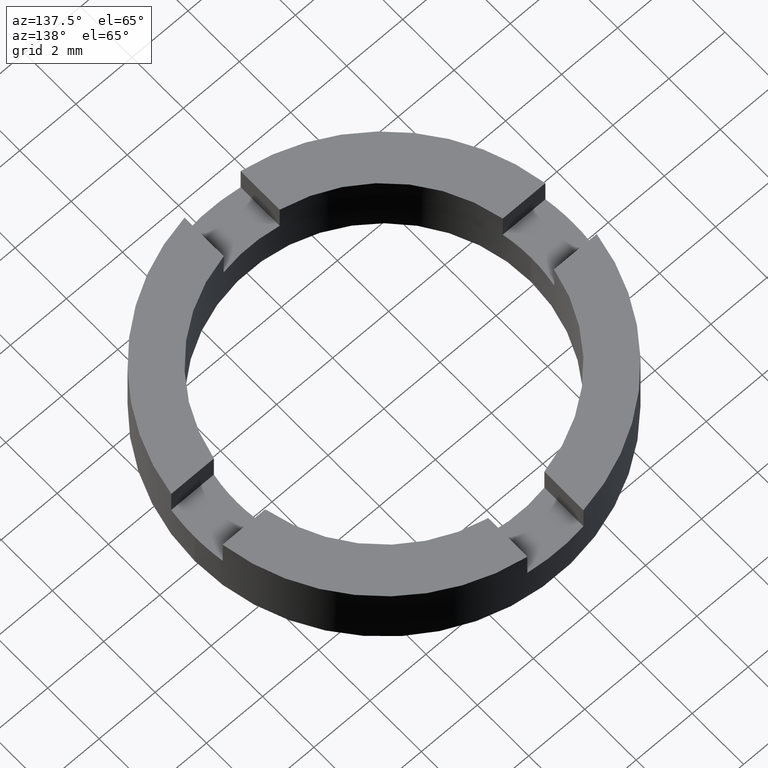
[diagram: clean part render]
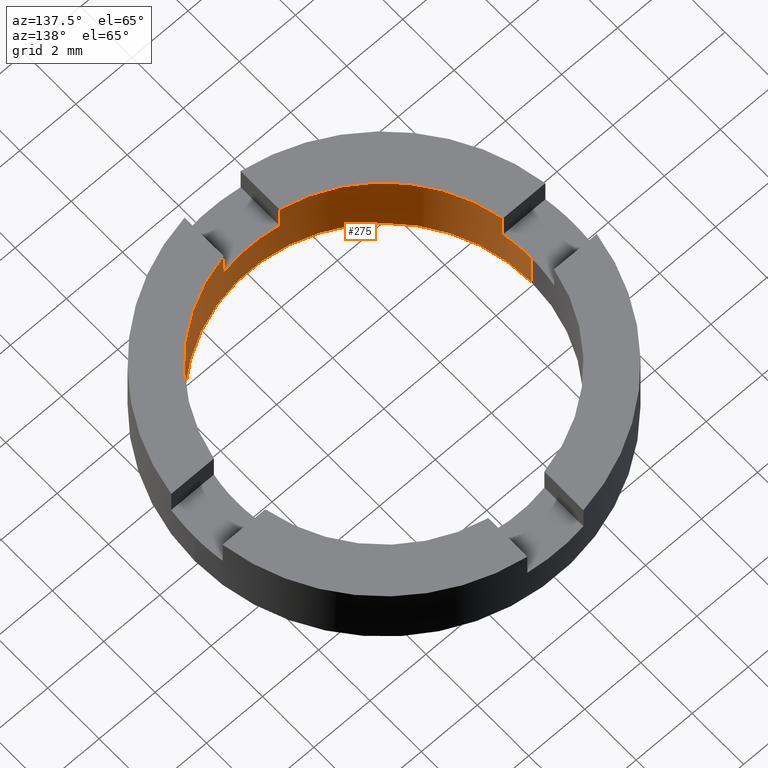
[diagram: same view with one face highlighted and labeled with its STEP entity id]
A machine part, auxiliary view. The second image highlights one B-rep face of the part: STEP entity #275.
In plain terms, the highlighted cylindrical surface (partial cylindrical patch) has radius 5.25 mm, axis along (-0, -0, -1).
Its self-contained STEP definition (entity closure, byte-faithful):
#5 = DIRECTION ( 'NONE',  ( -0.000000000000000000, -0.000000000000000000, 1.000000000000000000 ) ) ;
#29 = EDGE_CURVE ( 'NONE', #228, #414, #557, .T. ) ;
#37 = CARTESIAN_POINT ( 'NONE',  ( -5.250000000000000000, 0.000000000000000000, 0.000000000000000000 ) ) ;
#47 = CARTESIAN_POINT ( 'NONE',  ( 0.000000000000000000, 0.000000000000000000, 1.500000000000000000 ) ) ;
#57 = LINE ( 'NONE', #92, #328 ) ;
#60 = FACE_OUTER_BOUND ( 'NONE', #146, .T. ) ;
#66 = EDGE_CURVE ( 'NONE', #450, #174, #588, .T. ) ;
#71 = VECTOR ( 'NONE', #141, 1000.000000000000000 ) ;
#73 = CYLINDRICAL_SURFACE ( 'NONE', #420, 5.250000000000000000 ) ;
#83 = EDGE_CURVE ( 'NONE', #589, #209, #563, .T. ) ;
#89 = CARTESIAN_POINT ( 'NONE',  ( -0.9999999999999986677, -5.153882032022075954, 1.500000000000000000 ) ) ;
#91 = CIRCLE ( 'NONE', #692, 5.250000000000000000 ) ;
#92 = CARTESIAN_POINT ( 'NONE',  ( 5.250000000000000000, 6.429395695523604153E-16, 2.500000000000000000 ) ) ;
#93 = LINE ( 'NONE', #280, #635 ) ;
#105 = LINE ( 'NONE', #409, #114 ) ;
#106 = CARTESIAN_POINT ( 'NONE',  ( 0.000000000000000000, 0.000000000000000000, 1.500000000000000000 ) ) ;
#113 = VECTOR ( 'NONE', #5, 1000.000000000000000 ) ;
#114 = VECTOR ( 'NONE', #573, 1000.000000000000000 ) ;
#126 = ORIENTED_EDGE ( 'NONE', *, *, #684, .F. ) ;
#127 = EDGE_CURVE ( 'NONE', #320, #209, #565, .T. ) ;
#130 = CIRCLE ( 'NONE', #527, 5.250000000000000000 ) ;
#137 = CARTESIAN_POINT ( 'NONE',  ( 0.000000000000000000, 0.000000000000000000, 2.500000000000000000 ) ) ;
#139 = DIRECTION ( 'NONE',  ( 0.000000000000000000, 0.000000000000000000, 1.000000000000000000 ) ) ;
#141 = DIRECTION ( 'NONE',  ( -0.000000000000000000, -0.000000000000000000, 1.000000000000000000 ) ) ;
#146 = EDGE_LOOP ( 'NONE', ( #642, #472, #186, #632, #458, #389, #400, #441, #126, #648, #651, #712 ) ) ;
#158 = DIRECTION ( 'NONE',  ( 1.000000000000000000, 0.000000000000000000, 0.000000000000000000 ) ) ;
#174 = VERTEX_POINT ( 'NONE', #696 ) ;
#186 = ORIENTED_EDGE ( 'NONE', *, *, #66, .F. ) ;
#187 = VERTEX_POINT ( 'NONE', #549 ) ;
#201 = VERTEX_POINT ( 'NONE', #697 ) ;
#208 = AXIS2_PLACEMENT_3D ( 'NONE', #622, #434, #305 ) ;
#209 = VERTEX_POINT ( 'NONE', #681 ) ;
#225 = DIRECTION ( 'NONE',  ( -1.000000000000000000, 0.000000000000000000, 0.000000000000000000 ) ) ;
#228 = VERTEX_POINT ( 'NONE', #89 ) ;
#244 = CARTESIAN_POINT ( 'NONE',  ( -0.9999999999999986677, -5.153882032022075954, 2.500000000000000000 ) ) ;
#266 = AXIS2_PLACEMENT_3D ( 'NONE', #307, #497, #749 ) ;
#275 = ADVANCED_FACE ( 'NONE', ( #60 ), #73, .F. ) ;
#280 = CARTESIAN_POINT ( 'NONE',  ( -5.250000000000000000, 0.000000000000000000, 2.500000000000000000 ) ) ;
#285 = EDGE_CURVE ( 'NONE', #376, #174, #57, .T. ) ;
#305 = DIRECTION ( 'NONE',  ( 1.000000000000000000, 0.000000000000000000, 0.000000000000000000 ) ) ;
#307 = CARTESIAN_POINT ( 'NONE',  ( 0.000000000000000000, 0.000000000000000000, 0.000000000000000000 ) ) ;
#313 = EDGE_CURVE ( 'NONE', #187, #373, #91, .T. ) ;
#320 = VERTEX_POINT ( 'NONE', #769 ) ;
#322 = VECTOR ( 'NONE', #541, 1000.000000000000000 ) ;
#328 = VECTOR ( 'NONE', #399, 1000.000000000000000 ) ;
#332 = DIRECTION ( 'NONE',  ( -0.000000000000000000, -0.000000000000000000, -1.000000000000000000 ) ) ;
#341 = LINE ( 'NONE', #744, #113 ) ;
#343 = DIRECTION ( 'NONE',  ( 1.000000000000000000, 7.105427357601001859E-15, 0.000000000000000000 ) ) ;
#346 = DIRECTION ( 'NONE',  ( -0.000000000000000000, -0.000000000000000000, -1.000000000000000000 ) ) ;
#373 = VERTEX_POINT ( 'NONE', #703 ) ;
#376 = VERTEX_POINT ( 'NONE', #562 ) ;
#389 = ORIENTED_EDGE ( 'NONE', *, *, #502, .T. ) ;
#390 = AXIS2_PLACEMENT_3D ( 'NONE', #507, #451, #158 ) ;
#399 = DIRECTION ( 'NONE',  ( -0.000000000000000000, -0.000000000000000000, -1.000000000000000000 ) ) ;
#400 = ORIENTED_EDGE ( 'NONE', *, *, #768, .T. ) ;
#402 = CARTESIAN_POINT ( 'NONE',  ( 5.153882032022072401, -1.000000000000020428, 1.500000000000000000 ) ) ;
#409 = CARTESIAN_POINT ( 'NONE',  ( 1.000000000000001332, -5.153882032022075066, 1.500000000000000000 ) ) ;
#414 = VERTEX_POINT ( 'NONE', #244 ) ;
#420 = AXIS2_PLACEMENT_3D ( 'NONE', #465, #332, #225 ) ;
#421 = DIRECTION ( 'NONE',  ( 1.000000000000000000, 0.000000000000000000, 0.000000000000000000 ) ) ;
#432 = CARTESIAN_POINT ( 'NONE',  ( -0.9999999999999986677, -5.153882032022075954, 1.500000000000000000 ) ) ;
#434 = DIRECTION ( 'NONE',  ( 0.000000000000000000, -0.000000000000000000, -1.000000000000000000 ) ) ;
#441 = ORIENTED_EDGE ( 'NONE', *, *, #29, .F. ) ;
#450 = VERTEX_POINT ( 'NONE', #37 ) ;
#451 = DIRECTION ( 'NONE',  ( 0.000000000000000000, 0.000000000000000000, 1.000000000000000000 ) ) ;
#458 = ORIENTED_EDGE ( 'NONE', *, *, #313, .F. ) ;
#465 = CARTESIAN_POINT ( 'NONE',  ( 0.000000000000000000, 0.000000000000000000, 2.500000000000000000 ) ) ;
#468 = DIRECTION ( 'NONE',  ( 0.000000000000000000, -0.000000000000000000, -1.000000000000000000 ) ) ;
#472 = ORIENTED_EDGE ( 'NONE', *, *, #285, .T. ) ;
#497 = DIRECTION ( 'NONE',  ( 0.000000000000000000, 0.000000000000000000, 1.000000000000000000 ) ) ;
#502 = EDGE_CURVE ( 'NONE', #187, #760, #341, .T. ) ;
#507 = CARTESIAN_POINT ( 'NONE',  ( 0.000000000000000000, 0.000000000000000000, 2.500000000000000000 ) ) ;
#508 = DIRECTION ( 'NONE',  ( 0.000000000000000000, -0.000000000000000000, -1.000000000000000000 ) ) ;
#527 = AXIS2_PLACEMENT_3D ( 'NONE', #137, #139, #600 ) ;
#528 = EDGE_CURVE ( 'NONE', #376, #320, #639, .T. ) ;
#541 = DIRECTION ( 'NONE',  ( -0.000000000000000000, -0.000000000000000000, 1.000000000000000000 ) ) ;
#549 = CARTESIAN_POINT ( 'NONE',  ( -5.153882032022079507, -0.9999999999999817923, 1.500000000000000000 ) ) ;
#552 = AXIS2_PLACEMENT_3D ( 'NONE', #47, #468, #421 ) ;
#557 = LINE ( 'NONE', #432, #71 ) ;
#562 = CARTESIAN_POINT ( 'NONE',  ( 5.250000000000000000, 6.429395695523604153E-16, 1.500000000000000000 ) ) ;
#563 = CIRCLE ( 'NONE', #390, 5.250000000000000000 ) ;
#565 = LINE ( 'NONE', #402, #322 ) ;
#569 = EDGE_CURVE ( 'NONE', #373, #450, #93, .T. ) ;
#573 = DIRECTION ( 'NONE',  ( -0.000000000000000000, -0.000000000000000000, 1.000000000000000000 ) ) ;
#588 = CIRCLE ( 'NONE', #266, 5.250000000000000000 ) ;
#589 = VERTEX_POINT ( 'NONE', #716 ) ;
#596 = EDGE_CURVE ( 'NONE', #201, #589, #105, .T. ) ;
#600 = DIRECTION ( 'NONE',  ( 1.000000000000000000, 0.000000000000000000, 0.000000000000000000 ) ) ;
#622 = CARTESIAN_POINT ( 'NONE',  ( 0.000000000000000000, 0.000000000000000000, 1.500000000000000000 ) ) ;
#627 = CIRCLE ( 'NONE', #552, 5.250000000000000000 ) ;
#632 = ORIENTED_EDGE ( 'NONE', *, *, #569, .F. ) ;
#635 = VECTOR ( 'NONE', #346, 1000.000000000000000 ) ;
#639 = CIRCLE ( 'NONE', #208, 5.250000000000000000 ) ;
#642 = ORIENTED_EDGE ( 'NONE', *, *, #528, .F. ) ;
#648 = ORIENTED_EDGE ( 'NONE', *, *, #596, .T. ) ;
#651 = ORIENTED_EDGE ( 'NONE', *, *, #83, .T. ) ;
#681 = CARTESIAN_POINT ( 'NONE',  ( 5.153882032022072401, -1.000000000000020428, 2.500000000000000000 ) ) ;
#684 = EDGE_CURVE ( 'NONE', #201, #228, #627, .T. ) ;
#692 = AXIS2_PLACEMENT_3D ( 'NONE', #106, #508, #343 ) ;
#696 = CARTESIAN_POINT ( 'NONE',  ( 5.250000000000000000, 6.429395695523604153E-16, 0.000000000000000000 ) ) ;
#697 = CARTESIAN_POINT ( 'NONE',  ( 1.000000000000001332, -5.153882032022075066, 1.500000000000000000 ) ) ;
#703 = CARTESIAN_POINT ( 'NONE',  ( -5.250000000000000000, 0.000000000000000000, 1.500000000000000000 ) ) ;
#712 = ORIENTED_EDGE ( 'NONE', *, *, #127, .F. ) ;
#716 = CARTESIAN_POINT ( 'NONE',  ( 1.000000000000001332, -5.153882032022075066, 2.500000000000000000 ) ) ;
#734 = CARTESIAN_POINT ( 'NONE',  ( -5.153882032022079507, -0.9999999999999817923, 2.500000000000000000 ) ) ;
#744 = CARTESIAN_POINT ( 'NONE',  ( -5.153882032022079507, -0.9999999999999817923, 1.500000000000000000 ) ) ;
#749 = DIRECTION ( 'NONE',  ( 1.000000000000000000, 0.000000000000000000, 0.000000000000000000 ) ) ;
#760 = VERTEX_POINT ( 'NONE', #734 ) ;
#768 = EDGE_CURVE ( 'NONE', #760, #414, #130, .T. ) ;
#769 = CARTESIAN_POINT ( 'NONE',  ( 5.153882032022072401, -1.000000000000020428, 1.500000000000000000 ) ) ;